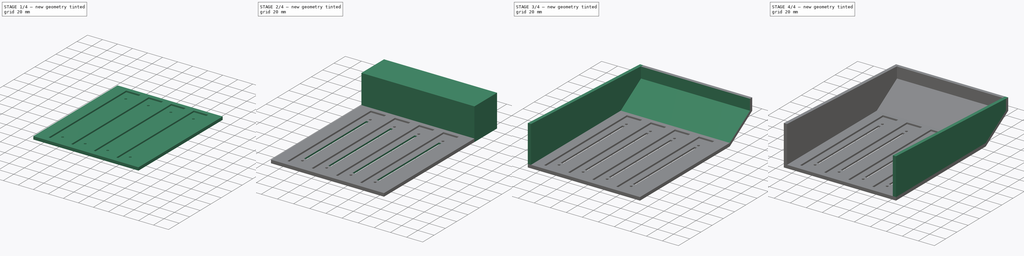
[diagram: build sequence overview — one tinted view per stage of 4, left to right]
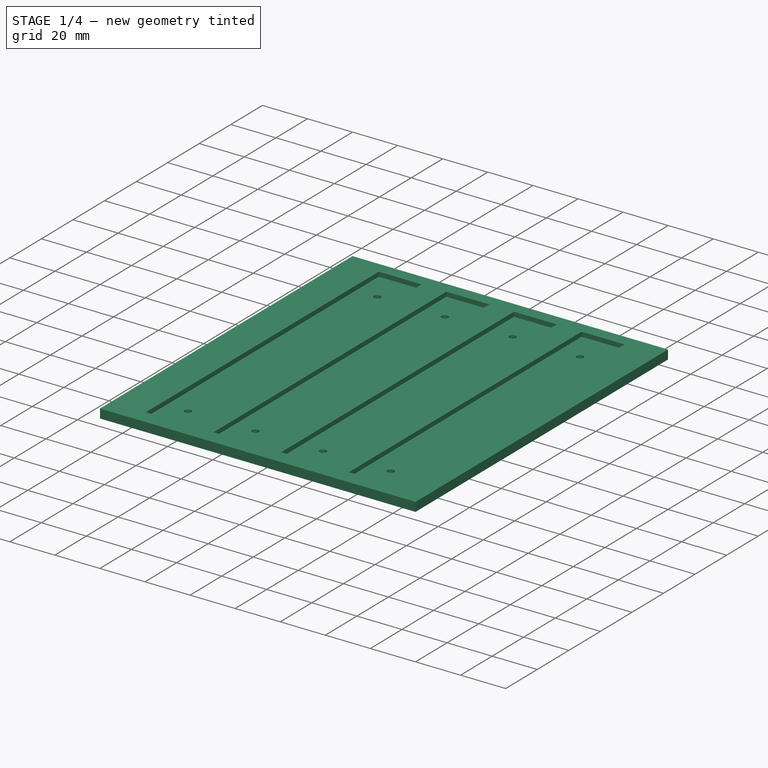
[diagram: stage 1 of 4 — iso view after this stage's code; geometry added in this stage tinted green]
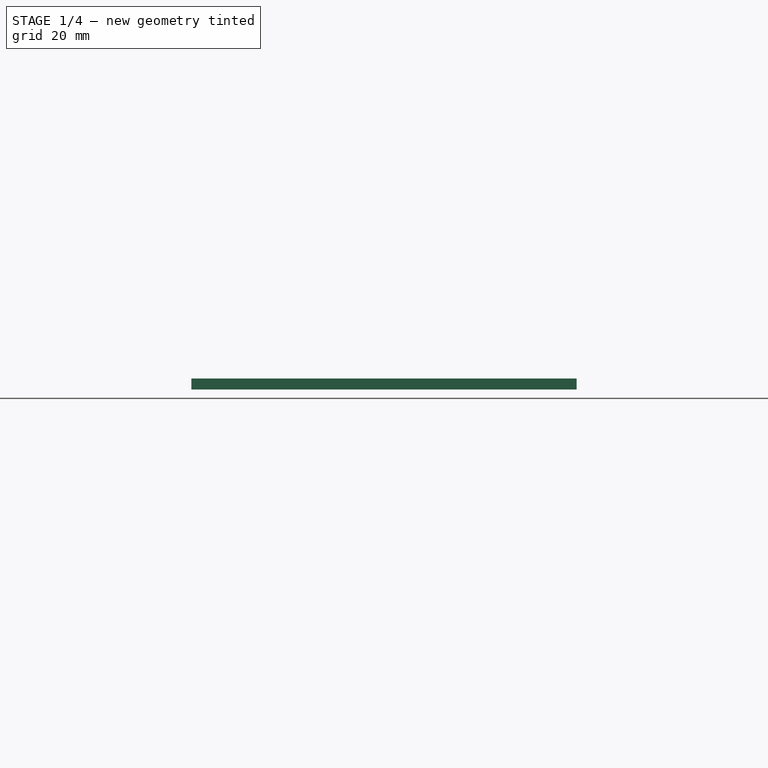
[diagram: stage 1 of 4 — front view after this stage's code; geometry added in this stage tinted green]
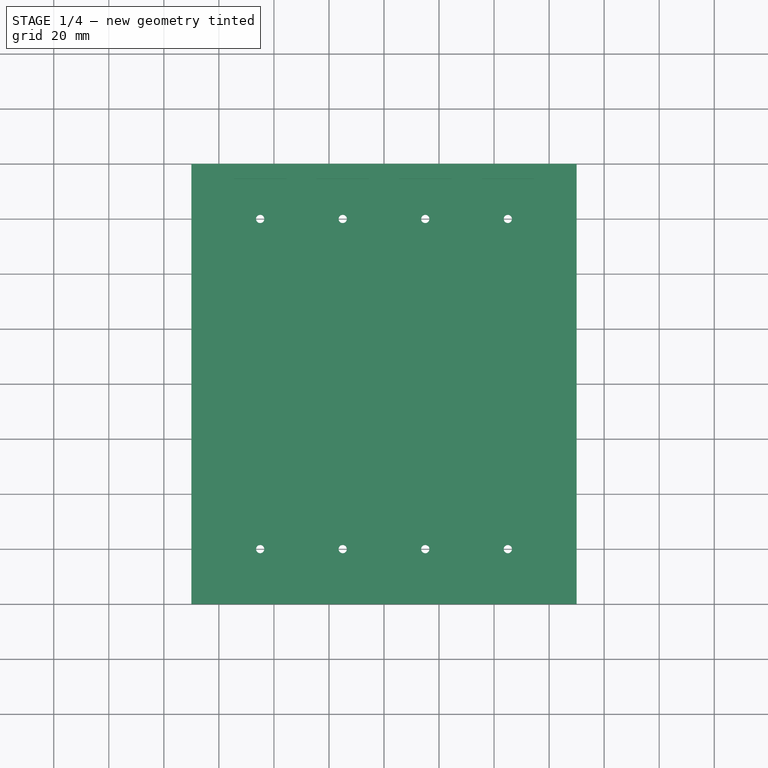
[diagram: stage 1 of 4 — top view after this stage's code; geometry added in this stage tinted green]
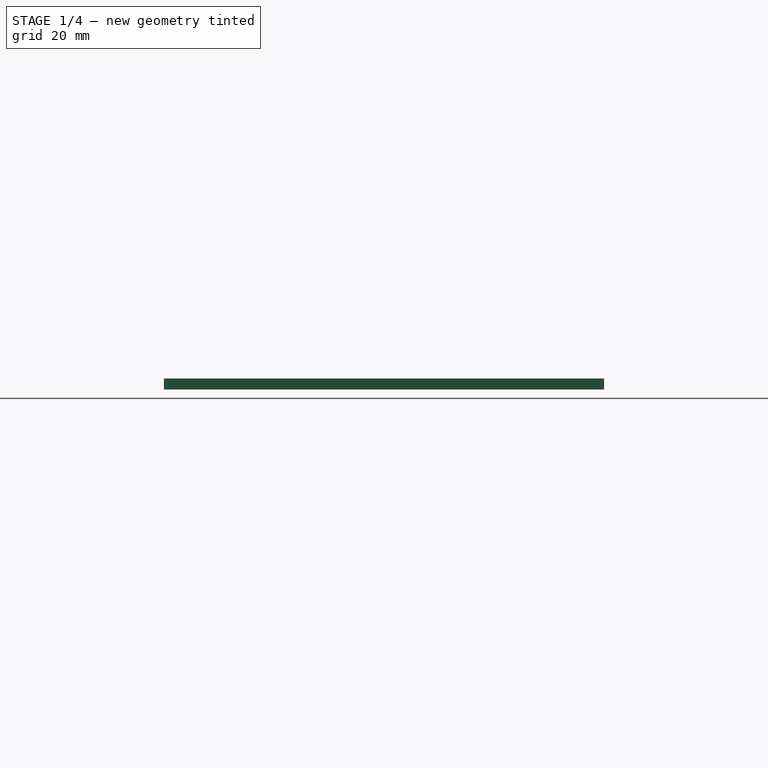
[diagram: stage 1 of 4 — right view after this stage's code; geometry added in this stage tinted green]
FCSTD DOCUMENT  (FreeCAD 0.19R24291 (Git))
Label: top_shell
License: All rights reserved
LicenseURL: http://en.wikipedia.org/wiki/All_rights_reserved
objects: Sketcher::SketchObject×13, PartDesign::Pocket×8, PartDesign::Pad×4, PartDesign::Chamfer×1, PartDesign::Body×1
note: 40 computed .brp shape members not serialized (recipe doc carries the construction recipe); baked Part::Feature solids carry a one-line shape summary decoded from their .brp

FEATURE [Sketcher::SketchObject] Sketch
  FullyConstrained = true
  MapMode = 5
  Support = -> [XY_Plane]
  sketch-geometry (4):
    g0: LineSegment StartX=-70 StartY=80 StartZ=0 EndX=70 EndY=80 EndZ=0
    g1: LineSegment StartX=70 StartY=80 StartZ=0 EndX=70 EndY=-80 EndZ=0
    g2: LineSegment StartX=70 StartY=-80 StartZ=0 EndX=-70 EndY=-80 EndZ=0
    g3: LineSegment StartX=-70 StartY=-80 StartZ=0 EndX=-70 EndY=80 EndZ=0
  constraints (12):
    c: Coincident(g0,g1)
    c: Coincident(g1,g2)
    c: Coincident(g2,g3)
    c: Coincident(g3,g0)
    c: Horizontal(g0)
    c: Horizontal(g2)
    c: Vertical(g1)
    c: Vertical(g3)
    c: DistanceX(g0,g0) = 140
    c: DistanceY(g1,g1) = 160
    c: DistanceY(g1,g-1) = 80
    c: DistanceX(g-1,g1) = 70
FEATURE [PartDesign::Pad] Pad
  Direction = (1,1,1)
  Length = 4
  Length2 = 100
  Profile = -> Sketch
  Type = 0
FEATURE [Sketcher::SketchObject] Sketch001
  FullyConstrained = true
  MapMode = 5
  Placement = pos=(0,0,4) rot=(0,0,1;0rad)
  Support = -> [Pad]
  sketch-geometry (20):
    g0: GeomPoint X=-45 Y=0 Z=0
    g1: GeomPoint X=-15 Y=0 Z=0
    g2: GeomPoint X=15 Y=0 Z=0
    g3: GeomPoint X=45 Y=0 Z=0
    g4: LineSegment StartX=-54.5 StartY=74.5 StartZ=0 EndX=-35.5 EndY=74.5 EndZ=0
    g5: LineSegment StartX=-35.5 StartY=74.5 StartZ=0 EndX=-35.5 EndY=-73 EndZ=0
    g6: LineSegment StartX=-35.5 StartY=-73 StartZ=0 EndX=-54.5 EndY=-73 EndZ=0
    g7: LineSegment StartX=-54.5 StartY=-73 StartZ=0 EndX=-54.5 EndY=74.5 EndZ=0
    g8: LineSegment StartX=-24.5 StartY=74.5 StartZ=0 EndX=-5.5 EndY=74.5 EndZ=0
    g9: LineSegment StartX=-5.5 StartY=74.5 StartZ=0 EndX=-5.5 EndY=-73 EndZ=0
    g10: LineSegment StartX=-5.5 StartY=-73 StartZ=0 EndX=-24.5 EndY=-73 EndZ=0
    g11: LineSegment StartX=-24.5 StartY=-73 StartZ=0 EndX=-24.5 EndY=74.5 EndZ=0
    g12: LineSegment StartX=5.5 StartY=74.5 StartZ=0 EndX=24.5 EndY=74.5 EndZ=0
    g13: LineSegment StartX=24.5 StartY=74.5 StartZ=0 EndX=24.5 EndY=-73 EndZ=0
    g14: LineSegment StartX=24.5 StartY=-73 StartZ=0 EndX=5.5 EndY=-73 EndZ=0
    g15: LineSegment StartX=5.5 StartY=-73 StartZ=0 EndX=5.5 EndY=74.5 EndZ=0
    g16: LineSegment StartX=35.5 StartY=74.5 StartZ=0 EndX=54.5 EndY=74.5 EndZ=0
    g17: LineSegment StartX=54.5 StartY=74.5 StartZ=0 EndX=54.5 EndY=-73 EndZ=0
    g18: LineSegment StartX=54.5 StartY=-73 StartZ=0 EndX=35.5 EndY=-73 EndZ=0
    g19: LineSegment StartX=35.5 StartY=-73 StartZ=0 EndX=35.5 EndY=74.5 EndZ=0
  constraints (56):
    c: PointOnObject(g0,g-1)
    c: PointOnObject(g1,g-1)
    c: PointOnObject(g2,g-1)
    c: PointOnObject(g3,g-1)
    c: Coincident(g4,g5)
    c: Coincident(g5,g6)
    c: Coincident(g6,g7)
    c: Coincident(g7,g4)
    c: Horizontal(g4)
    c: Horizontal(g6)
    c: Vertical(g5)
    c: Vertical(g7)
    c: Coincident(g8,g9)
    c: Coincident(g9,g10)
    c: Coincident(g10,g11)
    c: Coincident(g11,g8)
    c: Horizontal(g8)
    c: Horizontal(g10)
    c: Vertical(g9)
    c: Vertical(g11)
    c: Coincident(g12,g13)
    c: Coincident(g13,g14)
    c: Coincident(g14,g15)
    c: Coincident(g15,g12)
    c: Horizontal(g12)
    c: Horizontal(g14)
    c: Vertical(g13)
    c: Vertical(g15)
    c: Coincident(g16,g17)
    c: Coincident(g17,g18)
    c: Coincident(g18,g19)
    c: Coincident(g19,g16)
    c: Horizontal(g16)
    c: Horizontal(g18)
    c: Vertical(g17)
    c: Vertical(g19)
    c: DistanceX(g4,g4) = 19
    c: DistanceX(g8,g8) = 19
    c: DistanceX(g12,g12) = 19
    c: DistanceX(g16,g16) = 19
    c: DistanceY(g0,g4) = 74.5
    c: DistanceY(g5,g0) = 73
    c: DistanceY(g1,g8) = 74.5
    c: DistanceY(g2,g12) = 74.5
    c: DistanceY(g3,g16) = 74.5
    c: DistanceY(g9,g1) = 73
    c: DistanceY(g13,g2) = 73
    c: DistanceY(g17,g3) = 73
    c: DistanceX(g3,g17) = 9.5
    c: DistanceX(g2,g13) = 9.5
    c: DistanceX(g1,g9) = 9.5
    c: DistanceX(g0,g5) = 9.5
    c: DistanceX(g1,g-1) = 15
    c: DistanceX(g0,g1) = 30
    c: DistanceX(g-1,g2) = 15
    c: DistanceX(g2,g3) = 30
FEATURE [PartDesign::Pocket] Pocket
  BaseFeature = -> Pad
  Length = 2
  Length2 = 100
  Profile = -> Sketch001
  Type = 0
FEATURE [Sketcher::SketchObject] Sketch002
  FullyConstrained = true
  MapMode = 5
  Placement = pos=(0,0,2) rot=(0,0,1;0rad)
  Support = -> [Pocket]
  sketch-geometry (12):
    g0: GeomPoint X=-45 Y=0 Z=0
    g1: GeomPoint X=-15 Y=0 Z=0
    g2: GeomPoint X=15 Y=0 Z=0
    g3: GeomPoint X=45 Y=0 Z=0
    g4: Circle CenterX=-45 CenterY=60 CenterZ=0 NormalX=0 NormalY=0 NormalZ=1 AngleXU=0 Radius=1.5
    g5: Circle CenterX=-15 CenterY=60 CenterZ=0 NormalX=0 NormalY=0 NormalZ=1 AngleXU=0 Radius=1.5
    g6: Circle CenterX=15 CenterY=60 CenterZ=0 NormalX=0 NormalY=0 NormalZ=1 AngleXU=0 Radius=1.5
    g7: Circle CenterX=45 CenterY=60 CenterZ=0 NormalX=0 NormalY=0 NormalZ=1 AngleXU=0 Radius=1.5
    g8: Circle CenterX=-45 CenterY=-60 CenterZ=0 NormalX=0 NormalY=0 NormalZ=1 AngleXU=0 Radius=1.5
    g9: Circle CenterX=-15 CenterY=-60 CenterZ=0 NormalX=0 NormalY=0 NormalZ=1 AngleXU=0 Radius=1.5
    g10: Circle CenterX=15 CenterY=-60 CenterZ=0 NormalX=0 NormalY=0 NormalZ=1 AngleXU=0 Radius=1.5
    g11: Circle CenterX=45 CenterY=-60 CenterZ=0 NormalX=0 NormalY=0 NormalZ=1 AngleXU=0 Radius=1.5
  constraints (32):
    c: PointOnObject(g0,g-1)
    c: PointOnObject(g1,g-1)
    c: PointOnObject(g2,g-1)
    c: PointOnObject(g3,g-1)
    c: DistanceX(g1,g-1) = 15
    c: DistanceX(g0,g1) = 30
    c: DistanceX(g2,g3) = 30
    c: DistanceX(g-1,g2) = 15
    c: DistanceX(g1,g9) = 0
    c: DistanceX(g9,g10) = 30
    c: DistanceX(g10,g11) = 30
    c: DistanceX(g8,g9) = 30
    c: DistanceX(g5,g1) = 0
    c: DistanceX(g5,g6) = 30
    c: DistanceX(g6,g7) = 30
    c: DistanceX(g4,g5) = 30
    c: Diameter(g7) = 3
    c: Diameter(g6) = 3
    c: Diameter(g5) = 3
    c: Diameter(g4) = 3
    c: Diameter(g8) = 3
    c: Diameter(g9) = 3
    c: Diameter(g10) = 3
    c: Diameter(g11) = 3
    c: DistanceY(g8,g0) = 60
    c: DistanceY(g9,g1) = 60
    c: DistanceY(g10,g2) = 60
    c: DistanceY(g11,g3) = 60
    c: DistanceY(g3,g7) = 60
    c: DistanceY(g2,g6) = 60
    c: DistanceY(g1,g5) = 60
    c: DistanceY(g0,g4) = 60
FEATURE [PartDesign::Pocket] Pocket001
  BaseFeature = -> Pocket
  Length = 5
  Length2 = 100
  Profile = -> Sketch002
  Type = 0
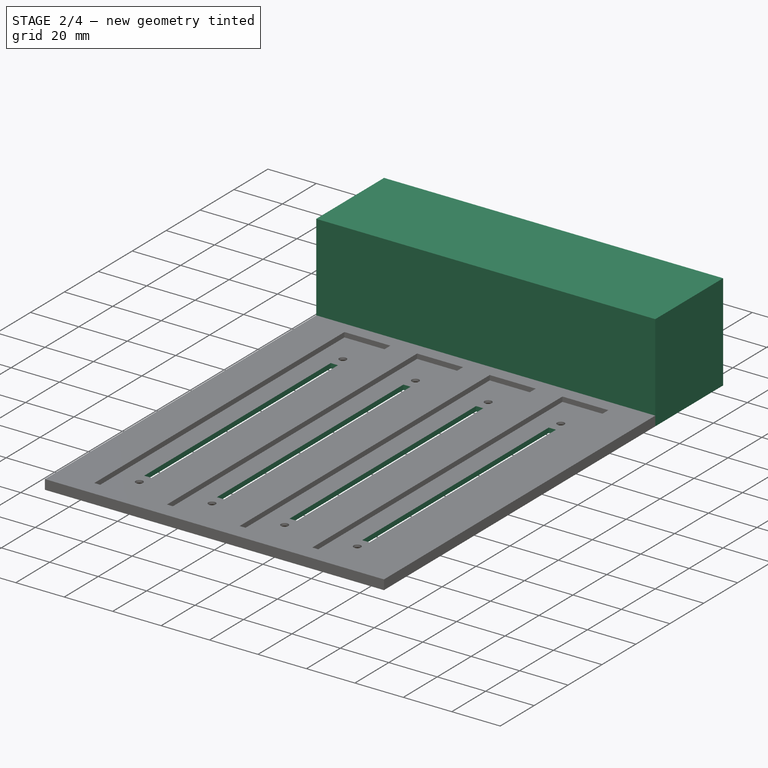
[diagram: stage 2 of 4 — iso view after this stage's code; geometry added in this stage tinted green]
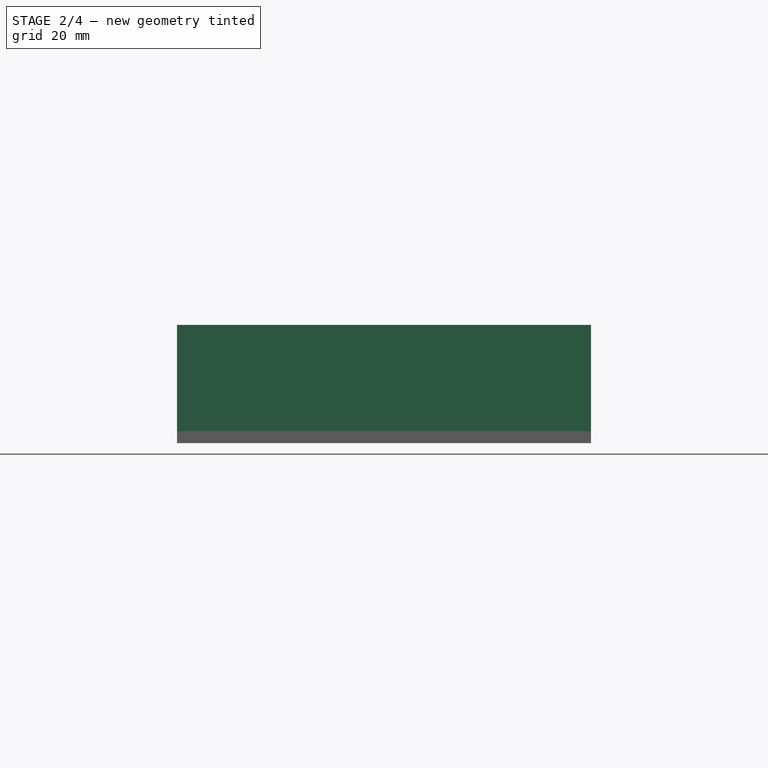
[diagram: stage 2 of 4 — front view after this stage's code; geometry added in this stage tinted green]
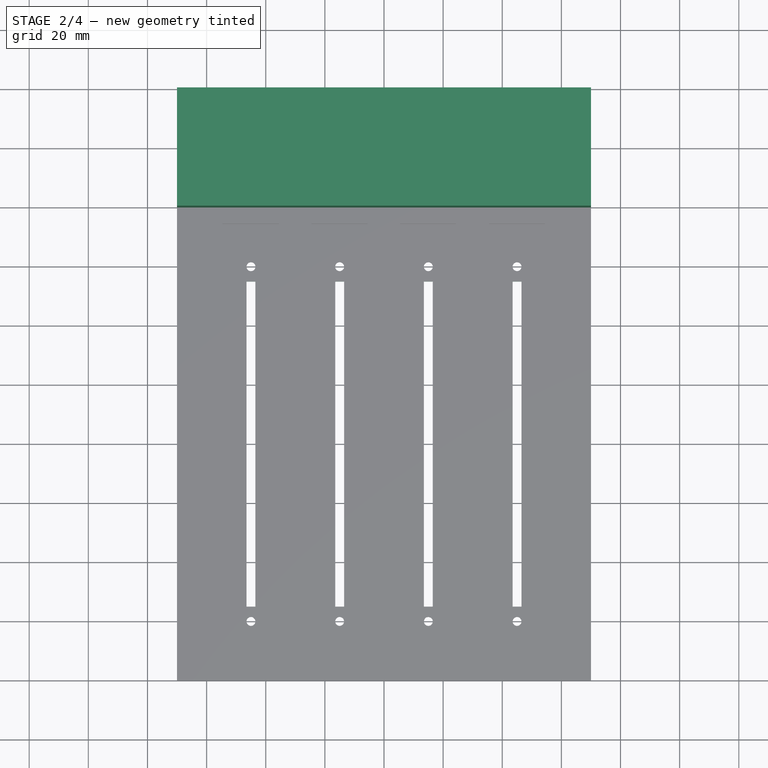
[diagram: stage 2 of 4 — top view after this stage's code; geometry added in this stage tinted green]
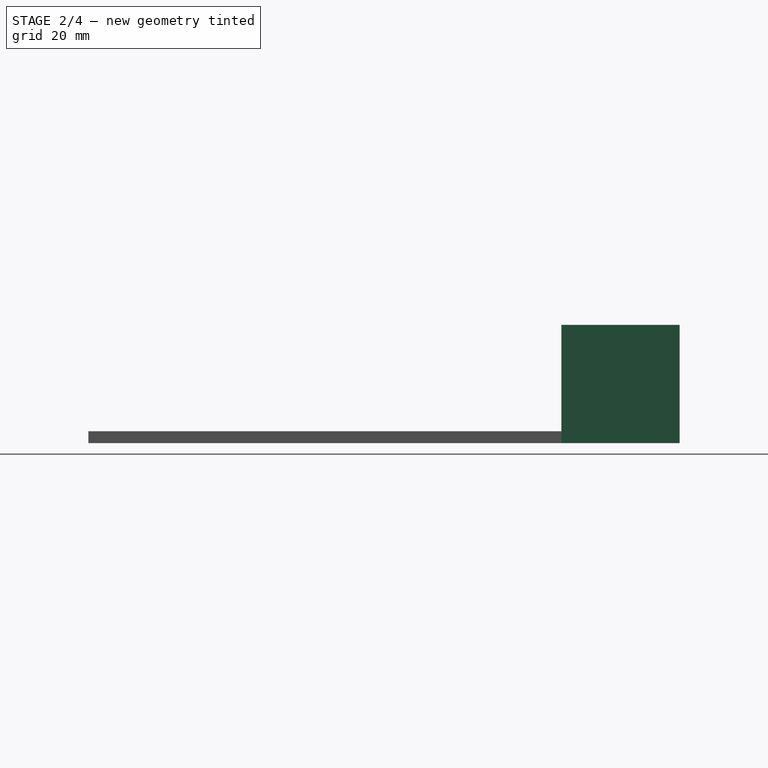
[diagram: stage 2 of 4 — right view after this stage's code; geometry added in this stage tinted green]
FEATURE [Sketcher::SketchObject] Sketch003
  FullyConstrained = true
  MapMode = 5
  Placement = pos=(0,0,2) rot=(0,0,1;0rad)
  Support = -> [Pocket001]
  sketch-geometry (20):
    g0: GeomPoint X=-45 Y=0 Z=0
    g1: GeomPoint X=-15 Y=0 Z=0
    g2: GeomPoint X=15 Y=0 Z=0
    g3: GeomPoint X=45 Y=0 Z=0
    g4: LineSegment StartX=-46.5 StartY=55 StartZ=0 EndX=-43.5 EndY=55 EndZ=0
    g5: LineSegment StartX=-43.5 StartY=55 StartZ=0 EndX=-43.5 EndY=-55 EndZ=0
    g6: LineSegment StartX=-43.5 StartY=-55 StartZ=0 EndX=-46.5 EndY=-55 EndZ=0
    g7: LineSegment StartX=-46.5 StartY=-55 StartZ=0 EndX=-46.5 EndY=55 EndZ=0
    g8: LineSegment StartX=-16.5 StartY=55 StartZ=0 EndX=-13.5 EndY=55 EndZ=0
    g9: LineSegment StartX=-13.5 StartY=55 StartZ=0 EndX=-13.5 EndY=-55 EndZ=0
    g10: LineSegment StartX=-13.5 StartY=-55 StartZ=0 EndX=-16.5 EndY=-55 EndZ=0
    g11: LineSegment StartX=-16.5 StartY=-55 StartZ=0 EndX=-16.5 EndY=55 EndZ=0
    g12: LineSegment StartX=13.5 StartY=55 StartZ=0 EndX=16.5 EndY=55 EndZ=0
    g13: LineSegment StartX=16.5 StartY=55 StartZ=0 EndX=16.5 EndY=-55 EndZ=0
    g14: LineSegment StartX=16.5 StartY=-55 StartZ=0 EndX=13.5 EndY=-55 EndZ=0
    g15: LineSegment StartX=13.5 StartY=-55 StartZ=0 EndX=13.5 EndY=55 EndZ=0
    g16: LineSegment StartX=43.5 StartY=55 StartZ=0 EndX=46.5 EndY=55 EndZ=0
    g17: LineSegment StartX=46.5 StartY=55 StartZ=0 EndX=46.5 EndY=-55 EndZ=0
    g18: LineSegment StartX=46.5 StartY=-55 StartZ=0 EndX=43.5 EndY=-55 EndZ=0
    g19: LineSegment StartX=43.5 StartY=-55 StartZ=0 EndX=43.5 EndY=55 EndZ=0
  constraints (56):
    c: PointOnObject(g0,g-1)
    c: PointOnObject(g1,g-1)
    c: PointOnObject(g2,g-1)
    c: PointOnObject(g3,g-1)
    c: DistanceX(g3) = 45
    c: DistanceX(g2) = 15
    c: DistanceX(g1) = -15
    c: DistanceX(g0) = -45
    c: Coincident(g4,g5)
    c: Coincident(g5,g6)
    c: Coincident(g6,g7)
    c: Coincident(g7,g4)
    c: Horizontal(g4)
    c: Horizontal(g6)
    c: Vertical(g5)
    c: Vertical(g7)
    c: Coincident(g8,g9)
    c: Coincident(g9,g10)
    c: Coincident(g10,g11)
    c: Coincident(g11,g8)
    c: Horizontal(g8)
    c: Horizontal(g10)
    c: Vertical(g9)
    c: Vertical(g11)
    c: Coincident(g12,g13)
    c: Coincident(g13,g14)
    c: Coincident(g14,g15)
    c: Coincident(g15,g12)
    c: Horizontal(g12)
    c: Horizontal(g14)
    c: Vertical(g13)
    c: Vertical(g15)
    c: Coincident(g16,g17)
    c: Coincident(g17,g18)
    c: Coincident(g18,g19)
    c: Coincident(g19,g16)
    c: Horizontal(g16)
    c: Horizontal(g18)
    c: Vertical(g17)
    c: Vertical(g19)
    c: DistanceX(g16,g3) = 1.5
    c: DistanceX(g12,g2) = 1.5
    c: DistanceX(g8,g1) = 1.5
    c: DistanceX(g4,g0) = 1.5
    c: DistanceY(g0,g4) = 55
    c: DistanceY(g1,g8) = 55
    c: DistanceY(g2,g12) = 55
    c: DistanceY(g3,g16) = 55
    c: DistanceY(g18,g3) = 55
    c: DistanceY(g14,g2) = 55
    c: DistanceY(g10,g1) = 55
    c: DistanceY(g6,g0) = 55
    c: DistanceX(g4,g4) = 3
    c: DistanceX(g8,g8) = 3
    c: DistanceX(g12,g12) = 3
    c: DistanceX(g16,g16) = 3
FEATURE [PartDesign::Pocket] Pocket002
  BaseFeature = -> Pocket001
  Length = 5
  Length2 = 100
  Profile = -> Sketch003
  Type = 0
FEATURE [PartDesign::Chamfer] Chamfer
  Angle = 45
  Base = -> Pocket002 [Edge12,Edge13,Edge14,Edge15,Edge35,Edge34,Edge25,Edge24]
  BaseFeature = -> Pocket002
  ChamferType = 0
  FlipDirection = false
  Size = 1
  Size2 = 1
  SupportTransform = false
FEATURE [Sketcher::SketchObject] Sketch004
  FullyConstrained = true
  MapMode = 5
  Placement = pos=(0,80,0) rot=(0,0.707107,0.707107;3.14159rad)
  Support = -> [Chamfer]
  sketch-geometry (4):
    g0: LineSegment StartX=70 StartY=0 StartZ=0 EndX=-70 EndY=0 EndZ=0
    g1: LineSegment StartX=-70 StartY=0 StartZ=0 EndX=-70 EndY=40 EndZ=0
    g2: LineSegment StartX=-70 StartY=40 StartZ=0 EndX=70 EndY=40 EndZ=0
    g3: LineSegment StartX=70 StartY=40 StartZ=0 EndX=70 EndY=0 EndZ=0
  constraints (12):
    c: Coincident(g0,g1)
    c: Coincident(g1,g2)
    c: Coincident(g2,g3)
    c: Coincident(g3,g0)
    c: Horizontal(g0)
    c: Horizontal(g2)
    c: Vertical(g1)
    c: Vertical(g3)
    c: PointOnObject(g0,g-1)
    c: DistanceX(g0) = -70
    c: DistanceY(g1) = 40
    c: DistanceX(g2) = 70
FEATURE [PartDesign::Pad] Pad001
  BaseFeature = -> Chamfer
  Direction = (1,1,1)
  Length = 40
  Length2 = 100
  Profile = -> Sketch004
  Type = 0
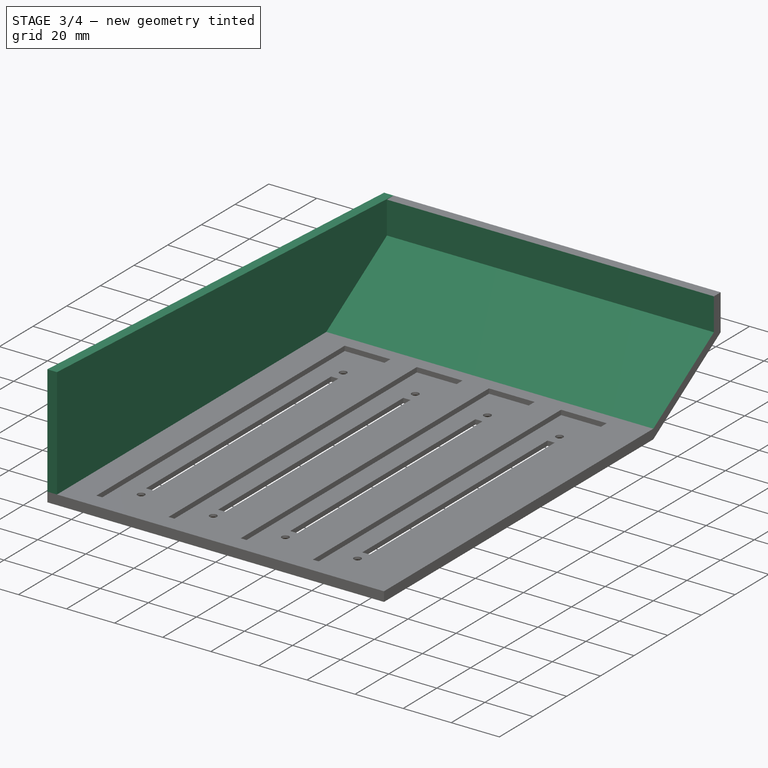
[diagram: stage 3 of 4 — iso view after this stage's code; geometry added in this stage tinted green]
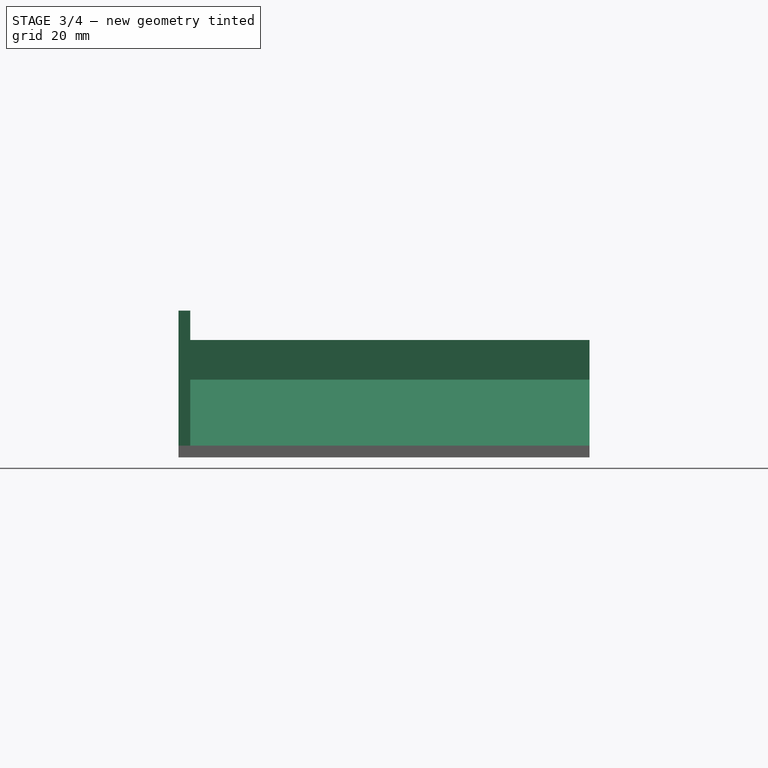
[diagram: stage 3 of 4 — front view after this stage's code; geometry added in this stage tinted green]
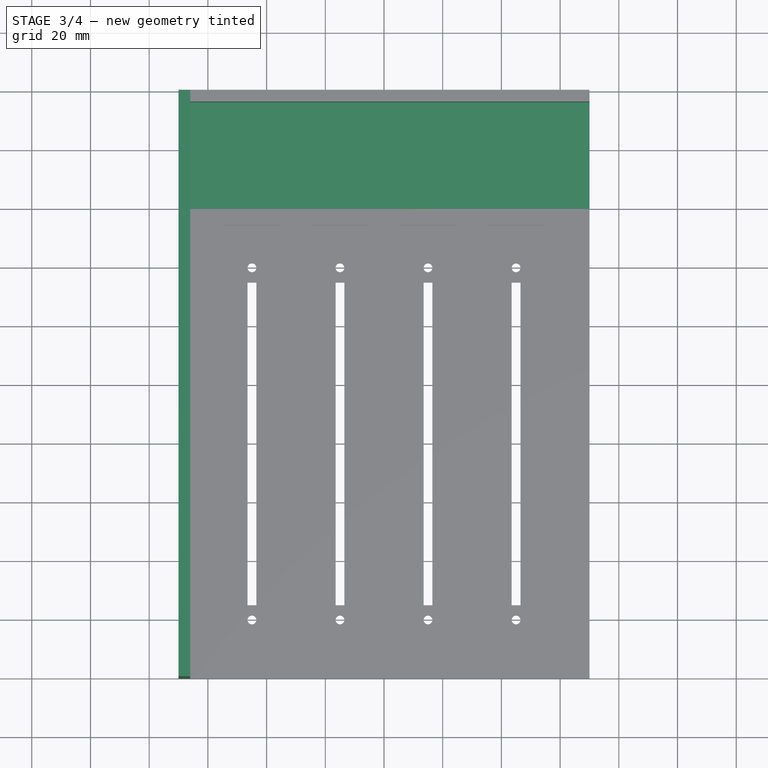
[diagram: stage 3 of 4 — top view after this stage's code; geometry added in this stage tinted green]
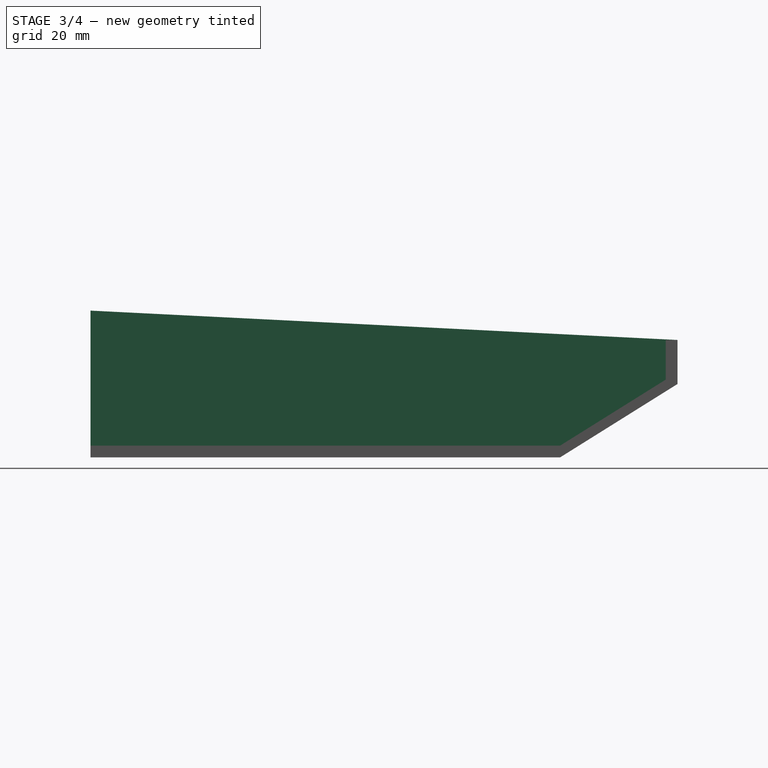
[diagram: stage 3 of 4 — right view after this stage's code; geometry added in this stage tinted green]
FEATURE [Sketcher::SketchObject] Sketch005
  FullyConstrained = false
  MapMode = 5
  Placement = pos=(-70,0,0) rot=(0.57735,-0.57735,-0.57735;2.0944rad)
  Support = -> [Pad001]
  sketch-geometry (4):
    g0: LineSegment StartX=80 StartY=0 StartZ=0 EndX=-120 EndY=0 EndZ=0
    g1: LineSegment StartX=-120 StartY=0 StartZ=0 EndX=-120 EndY=50 EndZ=0
    g2: LineSegment StartX=-120 StartY=50 StartZ=0 EndX=80 EndY=50 EndZ=0
    g3: LineSegment StartX=80 StartY=50 StartZ=0 EndX=80 EndY=0 EndZ=0
  constraints (9):
    c: Coincident(g0,g1)
    c: Coincident(g1,g2)
    c: Coincident(g2,g3)
    c: Coincident(g3,g0)
    c: Horizontal(g0)
    c: Horizontal(g2)
    c: Vertical(g1)
    c: Vertical(g3)
    c: PointOnObject(g0,g-1)
FEATURE [PartDesign::Pad] Pad002
  BaseFeature = -> Pad001
  Direction = (1,1,1)
  Length = 4
  Length2 = 100
  Profile = -> Sketch005
  Reversed = true
  Type = 0
FEATURE [Sketcher::SketchObject] Sketch006
  FullyConstrained = false
  MapMode = 5
  Placement = pos=(-70,0,0) rot=(0.57735,-0.57735,-0.57735;2.0944rad)
  Support = -> [Pad002]
  sketch-geometry (3):
    g0: LineSegment StartX=-120 StartY=40 StartZ=0 EndX=80 EndY=50 EndZ=0
    g1: LineSegment StartX=80 StartY=50 StartZ=0 EndX=-120 EndY=50 EndZ=0
    g2: LineSegment StartX=-120 StartY=50 StartZ=0 EndX=-120 EndY=40 EndZ=0
  constraints (5):
    c: Coincident(g0,g1)
    c: Horizontal(g1)
    c: Coincident(g1,g2)
    c: Coincident(g2,g0)
    c: Vertical(g2)
FEATURE [PartDesign::Pocket] Pocket003
  BaseFeature = -> Pad002
  Length = 5
  Length2 = 100
  Profile = -> Sketch006
  Type = 0
FEATURE [Sketcher::SketchObject] Sketch007
  FullyConstrained = false
  MapMode = 5
  Placement = pos=(-70,0,0) rot=(0.57735,-0.57735,-0.57735;2.0944rad)
  Support = -> [Pocket003]
  sketch-geometry (3):
    g0: LineSegment StartX=-80 StartY=0 StartZ=0 EndX=-120 EndY=25 EndZ=0
    g1: LineSegment StartX=-120 StartY=25 StartZ=0 EndX=-120 EndY=0 EndZ=0
    g2: LineSegment StartX=-120 StartY=0 StartZ=0 EndX=-80 EndY=0 EndZ=0
  constraints (6):
    c: PointOnObject(g0,g-1)
    c: Coincident(g0,g1)
    c: PointOnObject(g1,g-1)
    c: Vertical(g1)
    c: Coincident(g1,g2)
    c: Coincident(g2,g0)
FEATURE [PartDesign::Pocket] Pocket004
  BaseFeature = -> Pocket003
  Length = 5
  Length2 = 100
  Profile = -> Sketch007
  Type = 1
FEATURE [Sketcher::SketchObject] Sketch008
  ExternalGeometry = -> [Pocket004]
  FullyConstrained = false
  MapMode = 5
  Placement = pos=(70,0,0) rot=(0.57735,0.57735,0.57735;2.0944rad)
  Support = -> [Pocket004]
  sketch-geometry (4):
    g0: LineSegment StartX=80 StartY=4 StartZ=0 EndX=116 EndY=26.5 EndZ=0
    g1: LineSegment StartX=116 StartY=26.5 StartZ=0 EndX=116 EndY=40 EndZ=0
    g2: LineSegment StartX=116 StartY=40 StartZ=0 EndX=80 EndY=40 EndZ=0
    g3: LineSegment StartX=80 StartY=40 StartZ=0 EndX=80 EndY=4 EndZ=0
  constraints (10):
    c: Coincident(g0,g-3)
    c: Parallel(g0,g-4)
    c: Coincident(g0,g1)
    c: Vertical(g1)
    c: Coincident(g1,g2)
    c: Horizontal(g2)
    c: Coincident(g2,g3)
    c: Coincident(g3,g0)
    c: Vertical(g3)
    c: DistanceX(g1,g-5) = 4
FEATURE [PartDesign::Pocket] Pocket005
  BaseFeature = -> Pocket004
  Length = 0
  Length2 = 100
  Profile = -> Sketch008
  Type = 3
  UpToFace = -> Pocket004 [Face39]
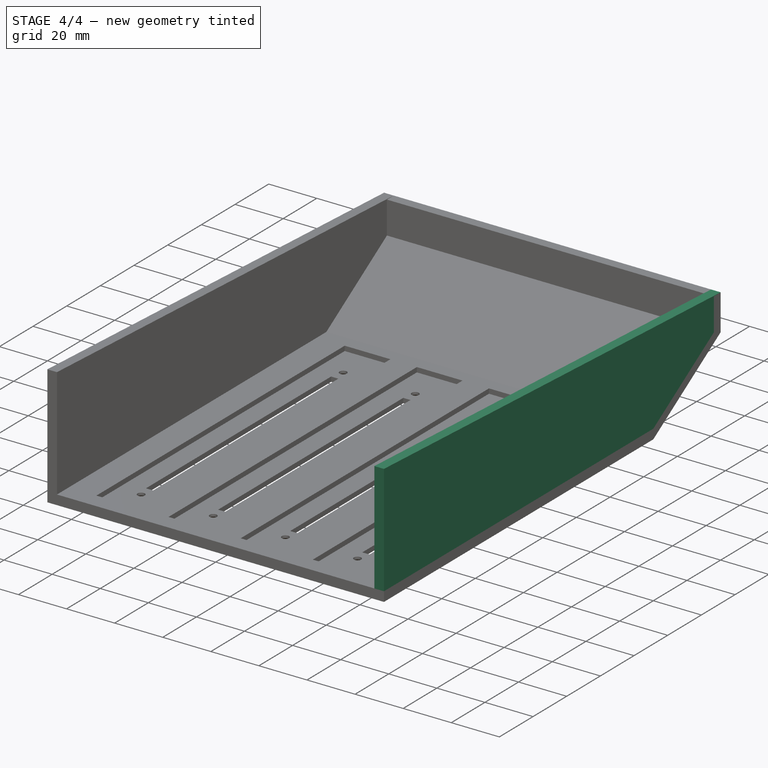
[diagram: stage 4 of 4 — iso view after this stage's code; geometry added in this stage tinted green]
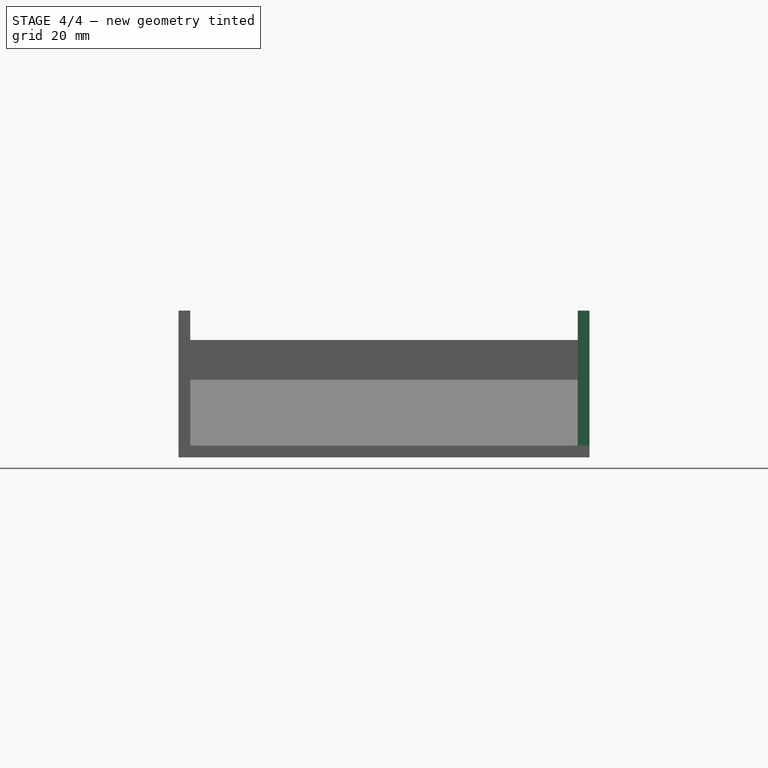
[diagram: stage 4 of 4 — front view after this stage's code; geometry added in this stage tinted green]
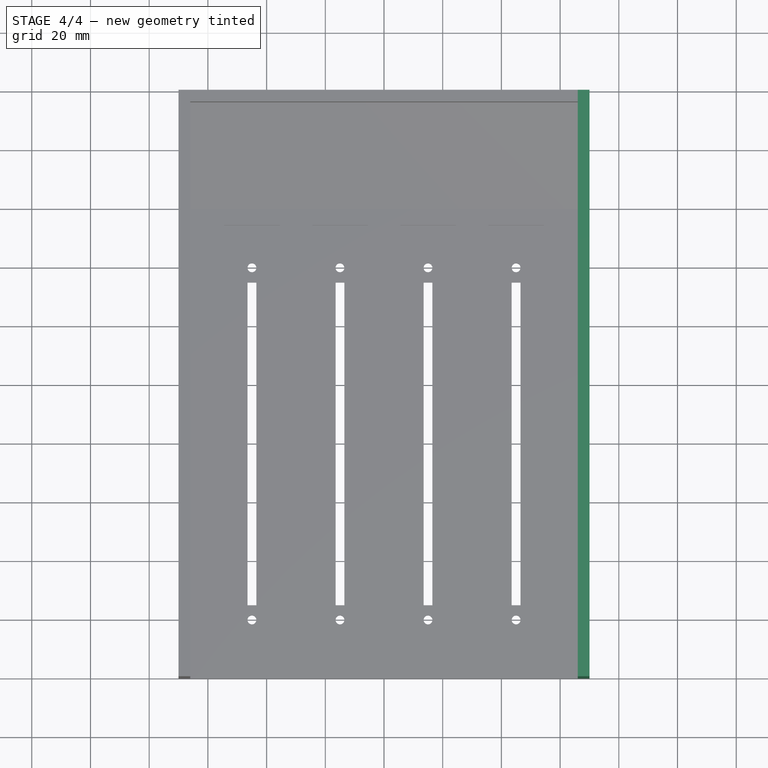
[diagram: stage 4 of 4 — top view after this stage's code; geometry added in this stage tinted green]
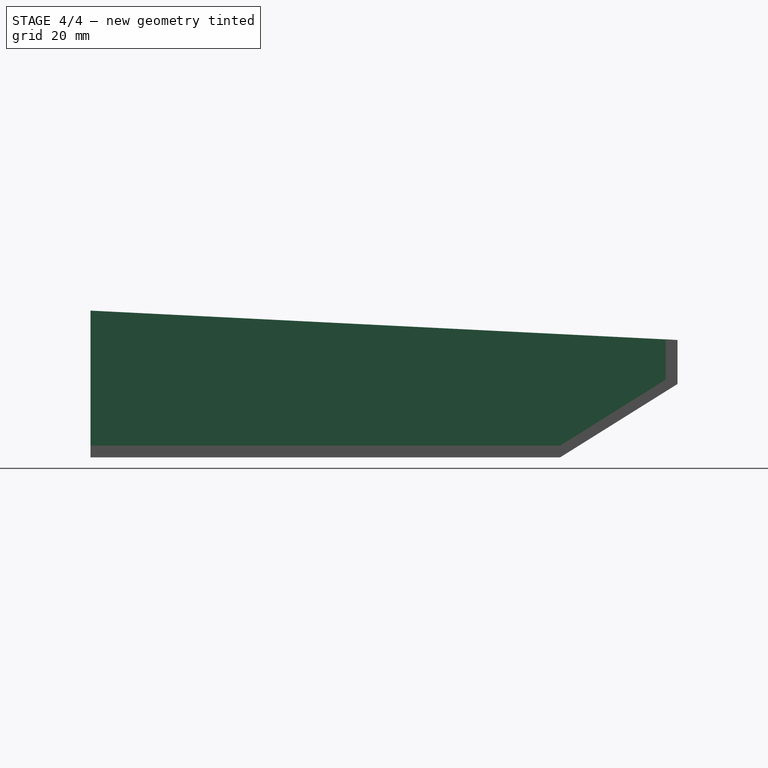
[diagram: stage 4 of 4 — right view after this stage's code; geometry added in this stage tinted green]
FEATURE [Sketcher::SketchObject] Sketch009
  FullyConstrained = false
  MapMode = 5
  Placement = pos=(70,0,0) rot=(0.57735,0.57735,0.57735;2.0944rad)
  Support = -> [Pocket005]
  sketch-geometry (4):
    g0: LineSegment StartX=-80 StartY=0 StartZ=0 EndX=120 EndY=0 EndZ=0
    g1: LineSegment StartX=120 StartY=0 StartZ=0 EndX=120 EndY=50 EndZ=0
    g2: LineSegment StartX=120 StartY=50 StartZ=0 EndX=-80 EndY=50 EndZ=0
    g3: LineSegment StartX=-80 StartY=50 StartZ=0 EndX=-80 EndY=0 EndZ=0
  constraints (9):
    c: Coincident(g0,g1)
    c: Coincident(g1,g2)
    c: Coincident(g2,g3)
    c: Coincident(g3,g0)
    c: Horizontal(g0)
    c: Horizontal(g2)
    c: Vertical(g1)
    c: Vertical(g3)
    c: PointOnObject(g0,g-1)
FEATURE [PartDesign::Pad] Pad003
  BaseFeature = -> Pocket005
  Direction = (1,1,1)
  Length = 4
  Length2 = 100
  Profile = -> Sketch009
  Reversed = true
  Type = 0
FEATURE [Sketcher::SketchObject] Sketch010
  FullyConstrained = false
  MapMode = 5
  Placement = pos=(70,0,0) rot=(0.57735,0.57735,0.57735;2.0944rad)
  Support = -> [Pad003]
  sketch-geometry (3):
    g0: LineSegment StartX=-80 StartY=50 StartZ=0 EndX=120 EndY=40 EndZ=0
    g1: LineSegment StartX=120 StartY=40 StartZ=0 EndX=120 EndY=50 EndZ=0
    g2: LineSegment StartX=120 StartY=50 StartZ=0 EndX=-80 EndY=50 EndZ=0
  constraints (5):
    c: Coincident(g0,g1)
    c: Vertical(g1)
    c: Coincident(g1,g2)
    c: Coincident(g2,g0)
    c: Horizontal(g2)
FEATURE [PartDesign::Pocket] Pocket006
  BaseFeature = -> Pad003
  Length = 5
  Length2 = 100
  Profile = -> Sketch010
  Type = 0
FEATURE [Sketcher::SketchObject] Sketch011
  ExternalGeometry = -> [Pocket006]
  FullyConstrained = true
  MapMode = 5
  Placement = pos=(70,0,0) rot=(0.57735,0.57735,0.57735;2.0944rad)
  Support = -> [Pocket006]
  sketch-geometry (3):
    g0: LineSegment StartX=120 StartY=25 StartZ=0 EndX=80 EndY=0 EndZ=0
    g1: LineSegment StartX=80 StartY=0 StartZ=0 EndX=120 EndY=0 EndZ=0
    g2: LineSegment StartX=120 StartY=0 StartZ=0 EndX=120 EndY=25 EndZ=0
  constraints (7):
    c: Coincident(g0,g-3)
    c: Coincident(g0,g-4)
    c: Coincident(g0,g1)
    c: Horizontal(g1)
    c: Coincident(g1,g2)
    c: Coincident(g2,g0)
    c: Vertical(g2)
FEATURE [PartDesign::Pocket] Pocket007
  BaseFeature = -> Pocket006
  Length = 5
  Length2 = 100
  Profile = -> Sketch011
  Type = 1
FEATURE [Sketcher::SketchObject] Sketch012
  FullyConstrained = true
  MapMode = 5
  Placement = pos=(0,2.29426,45.8853) rot=(-1,0,0;0.049958rad)
  Support = -> [Pocket007]
FEATURE [PartDesign::Body] Body
  Group = -> [Sketch,Pad,Sketch001,Pocket,Sketch002,Pocket001,Sketch003,Pocket002,Chamfer,Sketch004,Pad001,Sketch005,Pad002,Sketch006,Pocket003,Sketch007,Pocket004,Sketch008,Pocket005,Sketch009,Pad003,Sketch010,Pocket006,Sketch011,Pocket007,Sketch012]
  Origin = -> Origin
  Tip = -> Pocket007
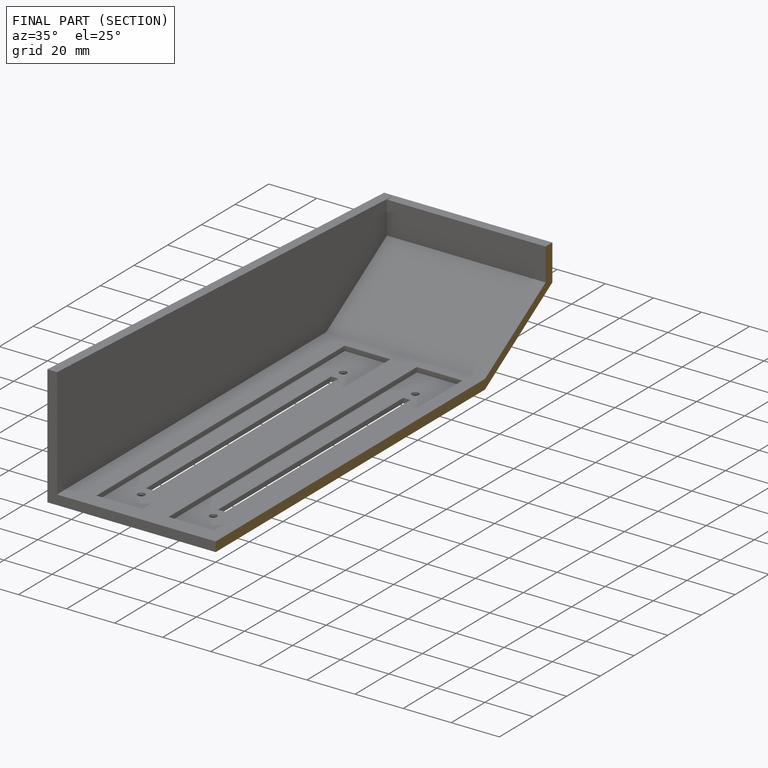
[diagram: finished part — half-section view (interior)]
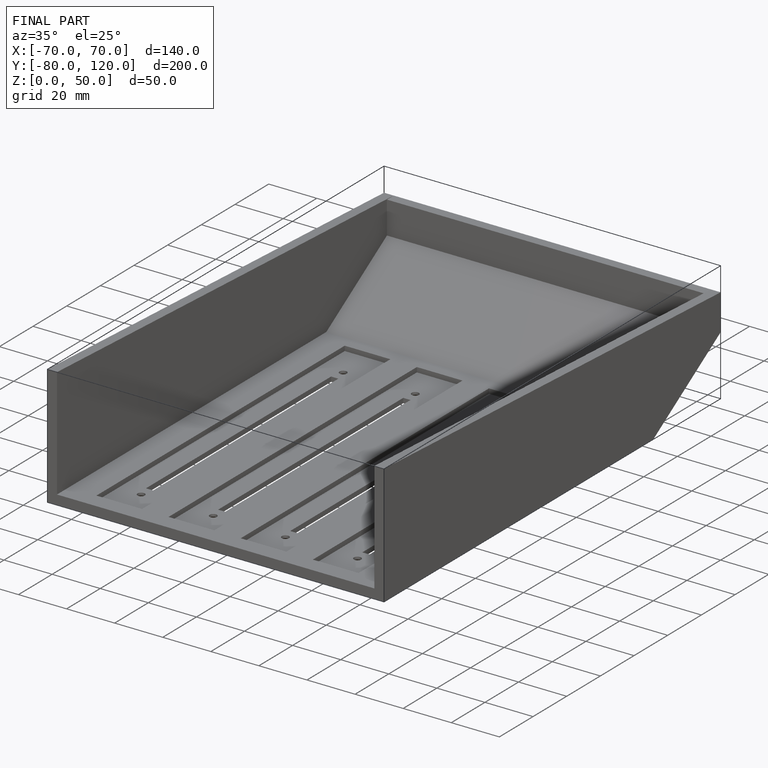
[diagram: finished part — iso view with bounding-box wireframe]
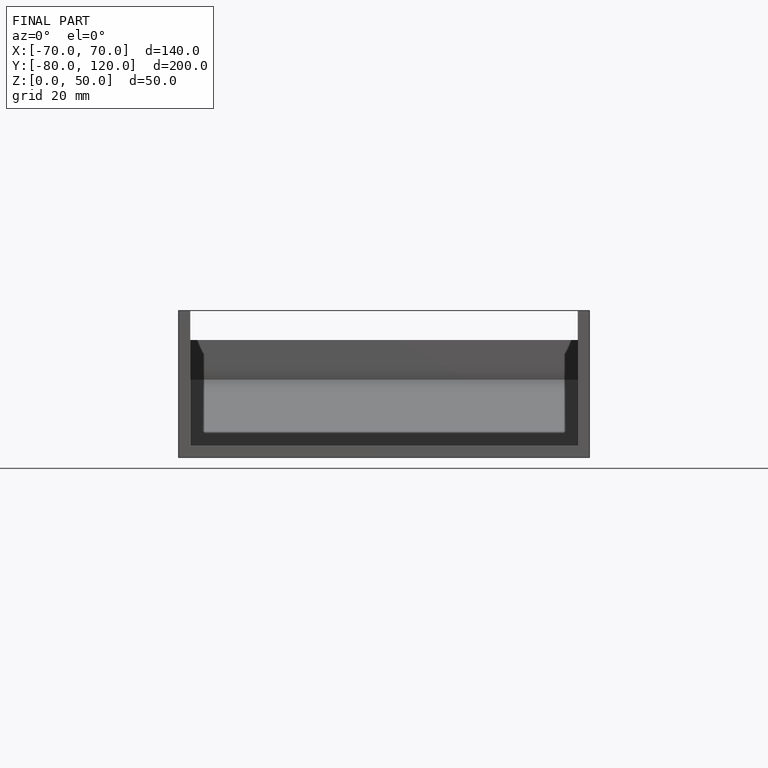
[diagram: finished part — front view with bounding-box wireframe]
